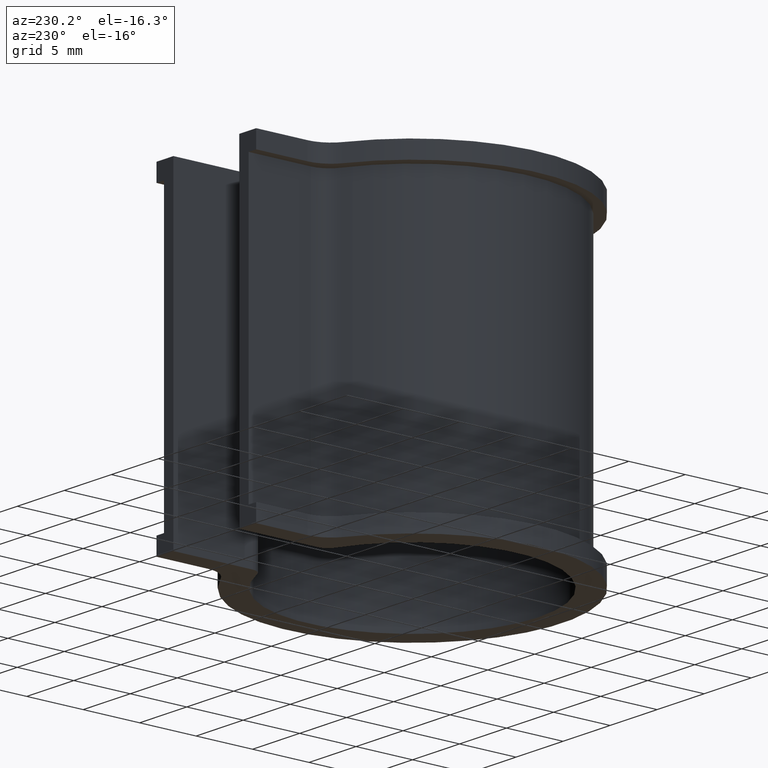
[diagram: clean part render]
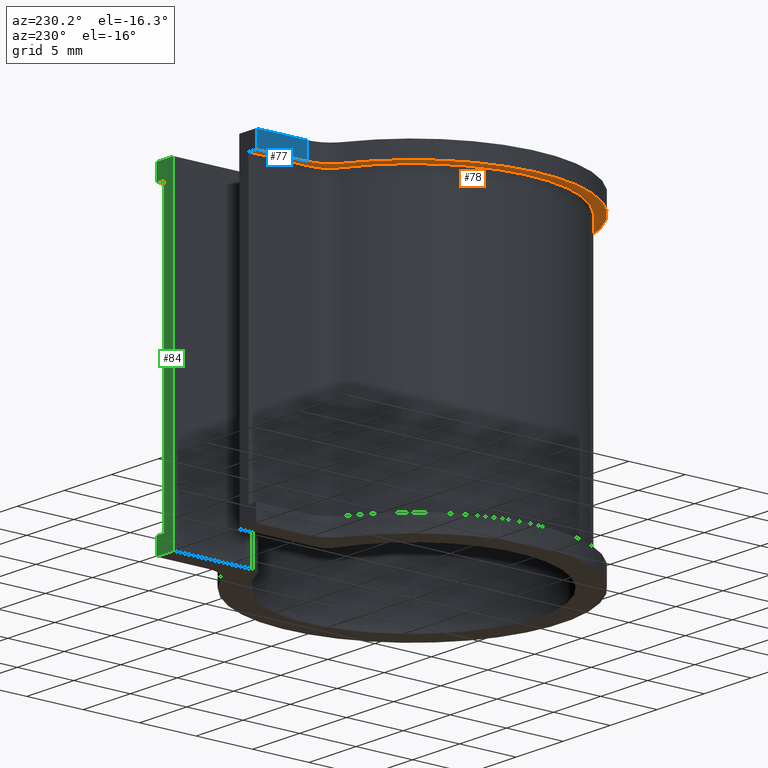
[diagram: same view with three faces highlighted in distinct colors, each labeled with its STEP entity id]
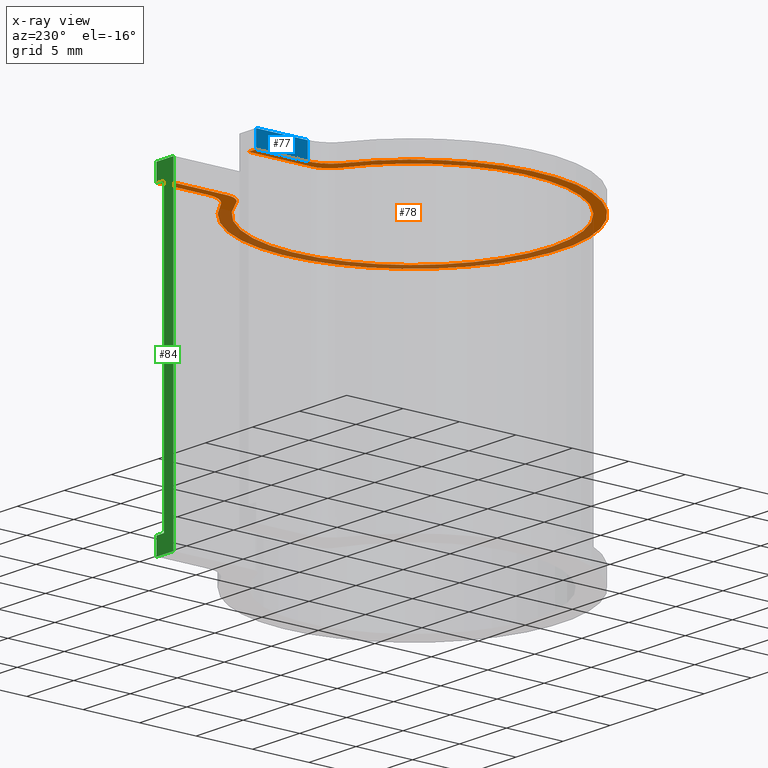
[diagram: x-ray of the same camera — body ghosted, the three highlighted faces saturated]
A machine part, auxiliary view with three faces highlighted in distinct colors.
The next image is the same camera in x-ray (body ghosted, the three faces saturated) — at least one of them is partly hidden behind the body in this view.
Their STEP definitions:

[orange] entity #78 — the highlighted planar face has unit normal (0, 0, 1).
#78 = ADVANCED_FACE( '', ( #108 ), #109, .F. );
#108 = FACE_OUTER_BOUND( '', #160, .T. );
#109 = PLANE( '', #161 );
#160 = EDGE_LOOP( '', ( #231, #232, #233, #234, #235, #236, #237, #238, #239, #240, #241, #242 ) );
#161 = AXIS2_PLACEMENT_3D( '', #243, #244, #245 );
#231 = ORIENTED_EDGE( '', *, *, #443, .T. );
#232 = ORIENTED_EDGE( '', *, *, #444, .T. );
#233 = ORIENTED_EDGE( '', *, *, #445, .T. );
#234 = ORIENTED_EDGE( '', *, *, #446, .T. );
#235 = ORIENTED_EDGE( '', *, *, #447, .T. );
#236 = ORIENTED_EDGE( '', *, *, #448, .F. );
#237 = ORIENTED_EDGE( '', *, *, #449, .F. );
#238 = ORIENTED_EDGE( '', *, *, #450, .T. );
#239 = ORIENTED_EDGE( '', *, *, #451, .F. );
#240 = ORIENTED_EDGE( '', *, *, #452, .T. );
#241 = ORIENTED_EDGE( '', *, *, #440, .F. );
#242 = ORIENTED_EDGE( '', *, *, #433, .F. );
#243 = CARTESIAN_POINT( '', ( 0.000000000000000, 0.000000000000000, 0.000000000000000 ) );
#244 = DIRECTION( '', ( 0.000000000000000, 0.000000000000000, 1.00000000000000 ) );
#245 = DIRECTION( '', ( 0.000000000000000, 1.00000000000000, 0.000000000000000 ) );
#433 = EDGE_CURVE( '', #509, #511, #512, .T. );
#440 = EDGE_CURVE( '', #511, #524, #525, .T. );
#443 = EDGE_CURVE( '', #509, #529, #530, .T. );
#444 = EDGE_CURVE( '', #529, #531, #532, .F. );
#445 = EDGE_CURVE( '', #531, #533, #534, .T. );
#446 = EDGE_CURVE( '', #533, #535, #536, .F. );
#447 = EDGE_CURVE( '', #535, #537, #538, .T. );
#448 = EDGE_CURVE( '', #539, #537, #540, .T. );
#449 = EDGE_CURVE( '', #541, #539, #542, .T. );
#450 = EDGE_CURVE( '', #541, #543, #544, .T. );
#451 = EDGE_CURVE( '', #545, #543, #546, .T. );
#452 = EDGE_CURVE( '', #545, #524, #547, .T. );
#509 = VERTEX_POINT( '', #633 );
#511 = VERTEX_POINT( '', #636 );
#512 = LINE( '', #637, #638 );
#524 = VERTEX_POINT( '', #656 );
#525 = LINE( '', #657, #658 );
#529 = VERTEX_POINT( '', #664 );
#530 = LINE( '', #665, #666 );
#531 = VERTEX_POINT( '', #667 );
#532 = CIRCLE( '', #668, 2.00000000000000 );
#533 = VERTEX_POINT( '', #669 );
#534 = CIRCLE( '', #670, 12.3100000000000 );
#535 = VERTEX_POINT( '', #671 );
#536 = CIRCLE( '', #672, 2.00000000000000 );
#537 = VERTEX_POINT( '', #673 );
#538 = LINE( '', #674, #675 );
#539 = VERTEX_POINT( '', #676 );
#540 = LINE( '', #677, #678 );
#541 = VERTEX_POINT( '', #679 );
#542 = LINE( '', #680, #681 );
#543 = VERTEX_POINT( '', #682 );
#544 = CIRCLE( '', #683, 2.50000000000000 );
#545 = VERTEX_POINT( '', #684 );
#546 = CIRCLE( '', #685, 13.2600000000000 );
#547 = CIRCLE( '', #686, 2.50000000000000 );
#633 = CARTESIAN_POINT( '', ( -4.49999999999999, 18.2580146622353, 0.000000000000000 ) );
#636 = CARTESIAN_POINT( '', ( -5.30000000000000, 18.2580146622353, 0.000000000000000 ) );
#637 = CARTESIAN_POINT( '', ( -3.50000000000000, 18.2580146622353, 0.000000000000000 ) );
#638 = VECTOR( '', #793, 1000.00000000000 );
#656 = CARTESIAN_POINT( '', ( -5.30000000000000, 13.6944368266826, 0.000000000000000 ) );
#657 = CARTESIAN_POINT( '', ( -5.30000000000000, 18.2580146622353, 0.000000000000000 ) );
#658 = VECTOR( '', #800, 1000.00000000000 );
#664 = CARTESIAN_POINT( '', ( -4.50000000000000, 12.7485724691041, 0.000000000000000 ) );
#665 = CARTESIAN_POINT( '', ( -4.50000000000000, 18.2580146622354, 0.000000000000000 ) );
#666 = VECTOR( '', #803, 1000.00000000000 );
#667 = CARTESIAN_POINT( '', ( -5.59154437456324, 10.9668013343586, 0.000000000000000 ) );
#668 = AXIS2_PLACEMENT_3D( '', #804, #805, #806 );
#669 = CARTESIAN_POINT( '', ( 5.59154437456324, 10.9668013343586, 0.000000000000000 ) );
#670 = AXIS2_PLACEMENT_3D( '', #807, #808, #809 );
#671 = CARTESIAN_POINT( '', ( 4.50000000000000, 12.7485724691041, 0.000000000000000 ) );
#672 = AXIS2_PLACEMENT_3D( '', #810, #811, #812 );
#673 = CARTESIAN_POINT( '', ( 4.50000000000000, 18.2580146622353, 0.000000000000000 ) );
#674 = CARTESIAN_POINT( '', ( 4.50000000000000, 11.4580146622353, 0.000000000000000 ) );
#675 = VECTOR( '', #813, 1000.00000000000 );
#676 = CARTESIAN_POINT( '', ( 5.30000000000000, 18.2580146622353, 0.000000000000000 ) );
#677 = CARTESIAN_POINT( '', ( 5.30000000000003, 18.2580146622353, 0.000000000000000 ) );
#678 = VECTOR( '', #814, 1000.00000000000 );
#679 = CARTESIAN_POINT( '', ( 5.30000000000000, 13.6944368266826, 0.000000000000000 ) );
#680 = CARTESIAN_POINT( '', ( 5.30000000000000, 12.1547357025975, 0.000000000000000 ) );
#681 = VECTOR( '', #815, 1000.00000000000 );
#682 = CARTESIAN_POINT( '', ( 6.56269035532995, 11.5220959595058, 0.000000000000000 ) );
#683 = AXIS2_PLACEMENT_3D( '', #816, #817, #818 );
#684 = CARTESIAN_POINT( '', ( -6.56269035532995, 11.5220959595058, 0.000000000000000 ) );
#685 = AXIS2_PLACEMENT_3D( '', #819, #820, #821 );
#686 = AXIS2_PLACEMENT_3D( '', #822, #823, #824 );
#793 = DIRECTION( '', ( -1.00000000000000, 0.000000000000000, 0.000000000000000 ) );
#800 = DIRECTION( '', ( -6.12303176911189E-017, -1.00000000000000, 0.000000000000000 ) );
#803 = DIRECTION( '', ( -1.11022302462516E-016, -1.00000000000000, 0.000000000000000 ) );
#804 = CARTESIAN_POINT( '', ( -6.50000000000000, 12.7485724691041, 3.46944695195361E-015 ) );
#805 = DIRECTION( '', ( 0.000000000000000, 0.000000000000000, 1.00000000000000 ) );
#806 = DIRECTION( '', ( 1.00000000000000, 0.000000000000000, 0.000000000000000 ) );
#807 = CARTESIAN_POINT( '', ( 0.000000000000000, 0.000000000000000, 0.000000000000000 ) );
#808 = DIRECTION( '', ( 0.000000000000000, 0.000000000000000, 1.00000000000000 ) );
#809 = DIRECTION( '', ( 1.00000000000000, 0.000000000000000, 0.000000000000000 ) );
#810 = CARTESIAN_POINT( '', ( 6.50000000000000, 12.7485724691041, 3.46944695195361E-015 ) );
#811 = DIRECTION( '', ( 0.000000000000000, 0.000000000000000, 1.00000000000000 ) );
#812 = DIRECTION( '', ( 1.00000000000000, 0.000000000000000, 0.000000000000000 ) );
#813 = DIRECTION( '', ( 1.11022302462516E-016, 1.00000000000000, 0.000000000000000 ) );
#814 = DIRECTION( '', ( -1.00000000000000, 0.000000000000000, 0.000000000000000 ) );
#815 = DIRECTION( '', ( 6.12303176911189E-017, 1.00000000000000, 0.000000000000000 ) );
#816 = CARTESIAN_POINT( '', ( 7.80000000000000, 13.6944368266826, 0.000000000000000 ) );
#817 = DIRECTION( '', ( 0.000000000000000, 0.000000000000000, 1.00000000000000 ) );
#818 = DIRECTION( '', ( 1.00000000000000, 0.000000000000000, 0.000000000000000 ) );
#819 = CARTESIAN_POINT( '', ( 0.000000000000000, 0.000000000000000, 0.000000000000000 ) );
#820 = DIRECTION( '', ( 0.000000000000000, 0.000000000000000, 1.00000000000000 ) );
#821 = DIRECTION( '', ( 1.00000000000000, 0.000000000000000, 0.000000000000000 ) );
#822 = CARTESIAN_POINT( '', ( -7.80000000000000, 13.6944368266826, 0.000000000000000 ) );
#823 = DIRECTION( '', ( 0.000000000000000, 0.000000000000000, 1.00000000000000 ) );
#824 = DIRECTION( '', ( 1.00000000000000, 0.000000000000000, 0.000000000000000 ) );

[blue] entity #77 — the highlighted planar face has unit normal (1, -0, 0).
#77 = ADVANCED_FACE( '', ( #106 ), #107, .F. );
#106 = FACE_OUTER_BOUND( '', #158, .T. );
#107 = PLANE( '', #159 );
#158 = EDGE_LOOP( '', ( #224, #225, #226, #227 ) );
#159 = AXIS2_PLACEMENT_3D( '', #228, #229, #230 );
#224 = ORIENTED_EDGE( '', *, *, #440, .T. );
#225 = ORIENTED_EDGE( '', *, *, #441, .T. );
#226 = ORIENTED_EDGE( '', *, *, #442, .F. );
#227 = ORIENTED_EDGE( '', *, *, #434, .T. );
#228 = CARTESIAN_POINT( '', ( -5.30000000000000, 18.2580146622353, 1.50000000000000 ) );
#229 = DIRECTION( '', ( 1.00000000000000, -6.12303176911189E-017, 0.000000000000000 ) );
#230 = DIRECTION( '', ( 6.12303176911189E-017, 1.00000000000000, 0.000000000000000 ) );
#434 = EDGE_CURVE( '', #513, #511, #514, .T. );
#440 = EDGE_CURVE( '', #511, #524, #525, .T. );
#441 = EDGE_CURVE( '', #524, #526, #527, .T. );
#442 = EDGE_CURVE( '', #513, #526, #528, .T. );
#511 = VERTEX_POINT( '', #636 );
#513 = VERTEX_POINT( '', #639 );
#514 = LINE( '', #640, #641 );
#524 = VERTEX_POINT( '', #656 );
#525 = LINE( '', #657, #658 );
#526 = VERTEX_POINT( '', #659 );
#527 = LINE( '', #660, #661 );
#528 = LINE( '', #662, #663 );
#636 = CARTESIAN_POINT( '', ( -5.30000000000000, 18.2580146622353, 0.000000000000000 ) );
#639 = CARTESIAN_POINT( '', ( -5.30000000000000, 18.2580146622353, 1.50000000000000 ) );
#640 = CARTESIAN_POINT( '', ( -5.30000000000000, 18.2580146622353, 1.50000000000000 ) );
#641 = VECTOR( '', #794, 1000.00000000000 );
#656 = CARTESIAN_POINT( '', ( -5.30000000000000, 13.6944368266826, 0.000000000000000 ) );
#657 = CARTESIAN_POINT( '', ( -5.30000000000000, 18.2580146622353, 0.000000000000000 ) );
#658 = VECTOR( '', #800, 1000.00000000000 );
#659 = CARTESIAN_POINT( '', ( -5.30000000000000, 13.6944368266826, 1.50000000000000 ) );
#660 = CARTESIAN_POINT( '', ( -5.30000000000000, 13.6944368266826, 1.50000000000000 ) );
#661 = VECTOR( '', #801, 1000.00000000000 );
#662 = CARTESIAN_POINT( '', ( -5.30000000000000, 18.2580146622353, 1.50000000000000 ) );
#663 = VECTOR( '', #802, 1000.00000000000 );
#794 = DIRECTION( '', ( 0.000000000000000, 0.000000000000000, -1.00000000000000 ) );
#800 = DIRECTION( '', ( -6.12303176911189E-017, -1.00000000000000, 0.000000000000000 ) );
#801 = DIRECTION( '', ( 0.000000000000000, 0.000000000000000, 1.00000000000000 ) );
#802 = DIRECTION( '', ( -6.12303176911189E-017, -1.00000000000000, 0.000000000000000 ) );

[green] entity #84 — the highlighted planar face has unit normal (0, 1, 0).
#84 = ADVANCED_FACE( '', ( #120 ), #121, .T. );
#120 = FACE_OUTER_BOUND( '', #172, .T. );
#121 = PLANE( '', #173 );
#172 = EDGE_LOOP( '', ( #297, #298, #299, #300, #301, #302, #303, #304 ) );
#173 = AXIS2_PLACEMENT_3D( '', #305, #306, #307 );
#297 = ORIENTED_EDGE( '', *, *, #431, .T. );
#298 = ORIENTED_EDGE( '', *, *, #477, .F. );
#299 = ORIENTED_EDGE( '', *, *, #478, .T. );
#300 = ORIENTED_EDGE( '', *, *, #448, .T. );
#301 = ORIENTED_EDGE( '', *, *, #479, .F. );
#302 = ORIENTED_EDGE( '', *, *, #461, .F. );
#303 = ORIENTED_EDGE( '', *, *, #480, .F. );
#304 = ORIENTED_EDGE( '', *, *, #474, .T. );
#305 = CARTESIAN_POINT( '', ( 4.50000000000004, 18.2580146622353, -25.0000000000000 ) );
#306 = DIRECTION( '', ( 5.55111512312578E-017, 1.00000000000000, 0.000000000000000 ) );
#307 = DIRECTION( '', ( 1.00000000000000, -5.55111512312578E-017, 0.000000000000000 ) );
#431 = EDGE_CURVE( '', #500, #505, #507, .T. );
#448 = EDGE_CURVE( '', #539, #537, #540, .T. );
#461 = EDGE_CURVE( '', #562, #564, #565, .T. );
#474 = EDGE_CURVE( '', #585, #500, #586, .T. );
#477 = EDGE_CURVE( '', #590, #505, #591, .T. );
#478 = EDGE_CURVE( '', #590, #539, #592, .T. );
#479 = EDGE_CURVE( '', #564, #537, #593, .T. );
#480 = EDGE_CURVE( '', #585, #562, #594, .T. );
#500 = VERTEX_POINT( '', #620 );
#505 = VERTEX_POINT( '', #627 );
#507 = LINE( '', #630, #631 );
#537 = VERTEX_POINT( '', #673 );
#539 = VERTEX_POINT( '', #676 );
#540 = LINE( '', #677, #678 );
#562 = VERTEX_POINT( '', #703 );
#564 = VERTEX_POINT( '', #706 );
#565 = LINE( '', #707, #708 );
#585 = VERTEX_POINT( '', #734 );
#586 = LINE( '', #735, #736 );
#590 = VERTEX_POINT( '', #741 );
#591 = LINE( '', #742, #743 );
#592 = LINE( '', #744, #745 );
#593 = LINE( '', #746, #747 );
#594 = LINE( '', #748, #749 );
#620 = CARTESIAN_POINT( '', ( 3.50000000000003, 18.2580146622353, -26.5000000000000 ) );
#627 = CARTESIAN_POINT( '', ( 3.50000000000003, 18.2580146622353, 1.50000000000000 ) );
#630 = CARTESIAN_POINT( '', ( 3.50000000000005, 18.2580146622353, -25.0000000000000 ) );
#631 = VECTOR( '', #791, 1000.00000000000 );
#673 = CARTESIAN_POINT( '', ( 4.50000000000000, 18.2580146622353, 0.000000000000000 ) );
#676 = CARTESIAN_POINT( '', ( 5.30000000000000, 18.2580146622353, 0.000000000000000 ) );
#677 = CARTESIAN_POINT( '', ( 5.30000000000003, 18.2580146622353, 0.000000000000000 ) );
#678 = VECTOR( '', #814, 1000.00000000000 );
#703 = CARTESIAN_POINT( '', ( 5.30000000000000, 18.2580146622353, -25.0000000000000 ) );
#706 = CARTESIAN_POINT( '', ( 4.50000000000000, 18.2580146622353, -25.0000000000000 ) );
#707 = CARTESIAN_POINT( '', ( 5.30000000000003, 18.2580146622353, -25.0000000000000 ) );
#708 = VECTOR( '', #843, 1000.00000000000 );
#734 = CARTESIAN_POINT( '', ( 5.30000000000000, 18.2580146622353, -26.5000000000000 ) );
#735 = CARTESIAN_POINT( '', ( 5.30000000000003, 18.2580146622353, -26.5000000000000 ) );
#736 = VECTOR( '', #868, 1000.00000000000 );
#741 = CARTESIAN_POINT( '', ( 5.30000000000000, 18.2580146622353, 1.50000000000000 ) );
#742 = CARTESIAN_POINT( '', ( 5.30000000000003, 18.2580146622353, 1.50000000000000 ) );
#743 = VECTOR( '', #873, 1000.00000000000 );
#744 = CARTESIAN_POINT( '', ( 5.30000000000000, 18.2580146622353, 1.50000000000000 ) );
#745 = VECTOR( '', #874, 1000.00000000000 );
#746 = CARTESIAN_POINT( '', ( 4.50000000000000, 18.2580146622353, -25.0000000000000 ) );
#747 = VECTOR( '', #875, 1000.00000000000 );
#748 = CARTESIAN_POINT( '', ( 5.30000000000000, 18.2580146622353, -26.5000000000000 ) );
#749 = VECTOR( '', #876, 1000.00000000000 );
#791 = DIRECTION( '', ( 0.000000000000000, 0.000000000000000, 1.00000000000000 ) );
#814 = DIRECTION( '', ( -1.00000000000000, 0.000000000000000, 0.000000000000000 ) );
#843 = DIRECTION( '', ( -1.00000000000000, 0.000000000000000, 0.000000000000000 ) );
#868 = DIRECTION( '', ( -1.00000000000000, 0.000000000000000, 0.000000000000000 ) );
#873 = DIRECTION( '', ( -1.00000000000000, 0.000000000000000, 0.000000000000000 ) );
#874 = DIRECTION( '', ( 0.000000000000000, 0.000000000000000, -1.00000000000000 ) );
#875 = DIRECTION( '', ( 0.000000000000000, 0.000000000000000, 1.00000000000000 ) );
#876 = DIRECTION( '', ( 0.000000000000000, 0.000000000000000, 1.00000000000000 ) );